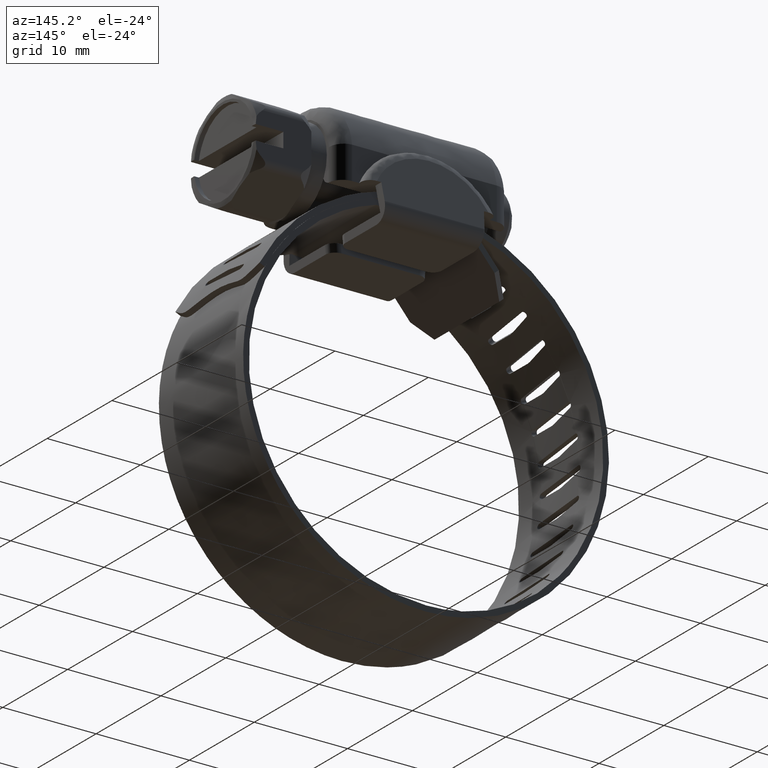
[diagram: clean part render]
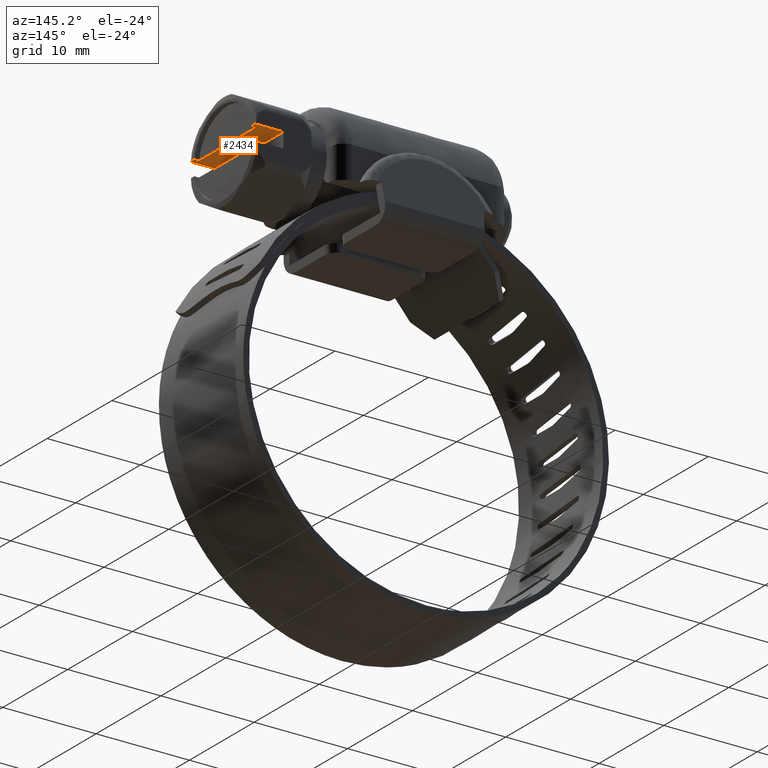
[diagram: same view with one face highlighted and labeled with its STEP entity id]
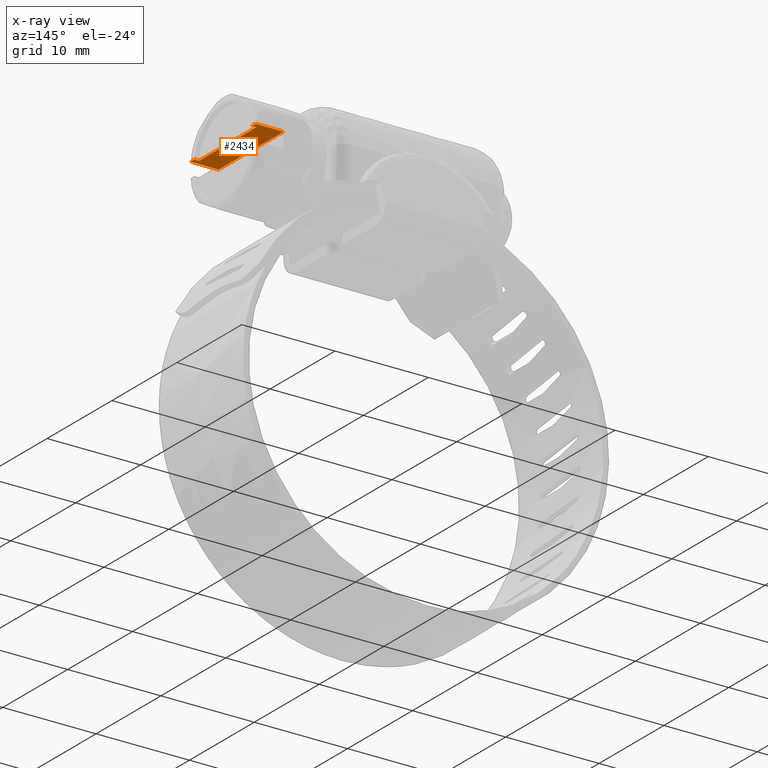
[diagram: x-ray of the same camera — body ghosted, the highlighted face saturated]
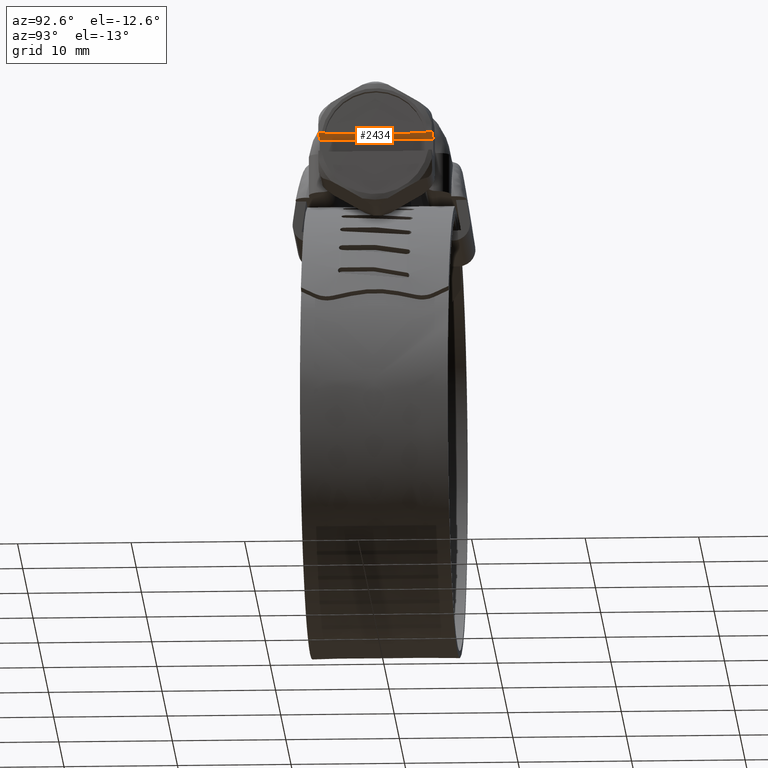
[diagram: same view with one face highlighted and labeled with its STEP entity id]
A machine part, auxiliary view. The second image highlights one B-rep face of the part: STEP entity #2434.
The next image is the same camera in x-ray: the body ghosted, the highlighted face saturated — about 0% of this face is hidden behind the body in this view.
A second angle (auxiliary view) of the same face is appended — the face is thin or edge-on in the first view.
In plain terms, the highlighted face is a freeform B-spline surface patch.
Its self-contained STEP definition (entity closure, byte-faithful):
#1755=CARTESIAN_POINT('',(17.206995863325250,-5.0,16.627121000000098));
#1756=VERTEX_POINT('',#1755);
#1764=CARTESIAN_POINT('',(17.250000000000000,-4.705979329380350,16.627121000000098));
#1765=VERTEX_POINT('',#1764);
#1766=CARTESIAN_POINT('',(17.206995863325250,-5.0,16.627121000000098));
#1767=CARTESIAN_POINT('',(17.235498994194970,-4.904772502441683,16.627121000000098));
#1768=CARTESIAN_POINT('',(17.250045349458620,-4.805382409510642,16.627121000000081));
#1769=CARTESIAN_POINT('',(17.250000000000000,-4.705979329380350,16.627121000000098));
#1770=B_SPLINE_CURVE_WITH_KNOTS('',3,(#1766,#1767,#1768,#1769),.UNSPECIFIED.,.F.,.U.,(4,4),(3.139385E-009,0.298202530748879),.UNSPECIFIED.);
#1771=EDGE_CURVE('',#1756,#1765,#1770,.T.);
#1773=CARTESIAN_POINT('',(17.250000000000000,4.705979329395211,16.627121000000098));
#1774=VERTEX_POINT('',#1773);
#1798=CARTESIAN_POINT('',(17.206995863325250,5.0,16.627121000000098));
#1799=VERTEX_POINT('',#1798);
#1800=CARTESIAN_POINT('',(17.250000000000000,4.705979329395211,16.627121000000098));
#1801=CARTESIAN_POINT('',(17.250057871150169,4.805383283317882,16.627121000000130));
#1802=CARTESIAN_POINT('',(17.235511332158708,4.904775175633341,16.627121000000098));
#1803=CARTESIAN_POINT('',(17.206995863325250,5.0,16.627121000000098));
#1804=B_SPLINE_CURVE_WITH_KNOTS('',3,(#1800,#1801,#1802,#1803),.UNSPECIFIED.,.F.,.U.,(4,4),(3.150240E-009,0.298204371843231),.UNSPECIFIED.);
#1805=EDGE_CURVE('',#1774,#1799,#1804,.T.);
#2162=CARTESIAN_POINT('',(16.750000000000000,4.428317965096910,16.627121000000098));
#2163=VERTEX_POINT('',#2162);
#2164=CARTESIAN_POINT('',(16.750000000000000,-4.428317965096910,16.627121000000098));
#2165=VERTEX_POINT('',#2164);
#2188=CARTESIAN_POINT('',(16.750000000000000,4.428317965096910,16.627121000000098));
#2189=CARTESIAN_POINT('',(16.750000000000000,-4.428317965096910,16.627121000000098));
#2190=QUASI_UNIFORM_CURVE('',1,(#2188,#2189),.UNSPECIFIED.,.F.,.U.);
#2191=EDGE_CURVE('',#2163,#2165,#2190,.T.);
#2214=CARTESIAN_POINT('',(17.250000000000000,4.428317965096910,16.627121000000098));
#2215=VERTEX_POINT('',#2214);
#2216=CARTESIAN_POINT('',(16.750000000000000,4.428317965096910,16.627121000000098));
#2217=CARTESIAN_POINT('',(17.250000000000000,4.428317965096910,16.627121000000098));
#2218=QUASI_UNIFORM_CURVE('',1,(#2216,#2217),.UNSPECIFIED.,.F.,.U.);
#2219=EDGE_CURVE('',#2163,#2215,#2218,.T.);
#2221=CARTESIAN_POINT('',(17.250000000000000,-4.428317965096910,16.627121000000098));
#2222=VERTEX_POINT('',#2221);
#2246=CARTESIAN_POINT('',(17.250000000000000,-4.428317965096910,16.627121000000098));
#2247=CARTESIAN_POINT('',(16.750000000000000,-4.428317965096910,16.627121000000098));
#2248=QUASI_UNIFORM_CURVE('',1,(#2246,#2247),.UNSPECIFIED.,.F.,.U.);
#2249=EDGE_CURVE('',#2222,#2165,#2248,.T.);
#2393=CARTESIAN_POINT('',(17.399849994185420,-5.499499980618060,16.627121000000098));
#2394=CARTESIAN_POINT('',(14.100149925348310,-5.499499980618060,16.627121000000098));
#2395=CARTESIAN_POINT('',(17.399849994185420,5.499500248838961,16.627121000000098));
#2396=CARTESIAN_POINT('',(14.100149925348310,5.499500248838961,16.627121000000098));
#2397=B_SPLINE_SURFACE_WITH_KNOTS('',1,1,((#2393,#2395),(#2394,#2396)),.UNSPECIFIED.,.F.,.F.,.U.,(2,2),(2,2),(0.0,3.299700068837110),(0.0,10.999000229457019),.UNSPECIFIED.);
#2398=ORIENTED_EDGE('',*,*,#1771,.F.);
#2399=CARTESIAN_POINT('',(14.250000000000000,-5.0,16.627121000000098));
#2400=VERTEX_POINT('',#2399);
#2401=CARTESIAN_POINT('',(14.250000000000000,-5.0,16.627121000000098));
#2402=CARTESIAN_POINT('',(17.206995863325250,-5.0,16.627121000000098));
#2403=QUASI_UNIFORM_CURVE('',1,(#2401,#2402),.UNSPECIFIED.,.F.,.U.);
#2404=EDGE_CURVE('',#2400,#1756,#2403,.T.);
#2405=ORIENTED_EDGE('',*,*,#2404,.F.);
#2406=CARTESIAN_POINT('',(14.250000000000000,5.0,16.627121000000098));
#2407=VERTEX_POINT('',#2406);
#2408=CARTESIAN_POINT('',(14.250000000000000,-5.0,16.627121000000098));
#2409=CARTESIAN_POINT('',(14.250000000000000,5.0,16.627121000000098));
#2410=QUASI_UNIFORM_CURVE('',1,(#2408,#2409),.UNSPECIFIED.,.F.,.U.);
#2411=EDGE_CURVE('',#2400,#2407,#2410,.T.);
#2412=ORIENTED_EDGE('',*,*,#2411,.T.);
#2413=CARTESIAN_POINT('',(14.250000000000000,5.0,16.627121000000098));
#2414=CARTESIAN_POINT('',(17.206995863325250,5.0,16.627121000000098));
#2415=QUASI_UNIFORM_CURVE('',1,(#2413,#2414),.UNSPECIFIED.,.F.,.U.);
#2416=EDGE_CURVE('',#2407,#1799,#2415,.T.);
#2417=ORIENTED_EDGE('',*,*,#2416,.T.);
#2418=ORIENTED_EDGE('',*,*,#1805,.F.);
#2419=CARTESIAN_POINT('',(17.250000000000000,4.428317965096910,16.627121000000098));
#2420=CARTESIAN_POINT('',(17.250000000000000,4.705979329395211,16.627121000000098));
#2421=QUASI_UNIFORM_CURVE('',1,(#2419,#2420),.UNSPECIFIED.,.F.,.U.);
#2422=EDGE_CURVE('',#2215,#1774,#2421,.T.);
#2423=ORIENTED_EDGE('',*,*,#2422,.F.);
#2424=ORIENTED_EDGE('',*,*,#2219,.F.);
#2425=ORIENTED_EDGE('',*,*,#2191,.T.);
#2426=ORIENTED_EDGE('',*,*,#2249,.F.);
#2427=CARTESIAN_POINT('',(17.250000000000000,-4.705979329380350,16.627121000000098));
#2428=CARTESIAN_POINT('',(17.250000000000000,-4.428317965096910,16.627121000000098));
#2429=QUASI_UNIFORM_CURVE('',1,(#2427,#2428),.UNSPECIFIED.,.F.,.U.);
#2430=EDGE_CURVE('',#1765,#2222,#2429,.T.);
#2431=ORIENTED_EDGE('',*,*,#2430,.F.);
#2432=EDGE_LOOP('',(#2398,#2405,#2412,#2417,#2418,#2423,#2424,#2425,#2426,#2431));
#2433=FACE_OUTER_BOUND('',#2432,.T.);
#2434=ADVANCED_FACE('',(#2433),#2397,.T.);